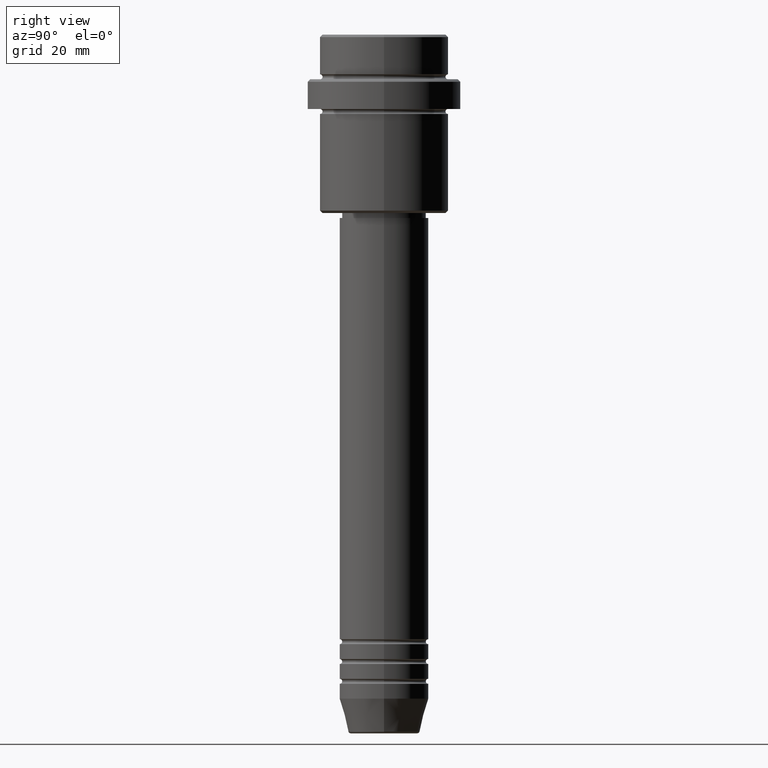
[diagram: clean part render]
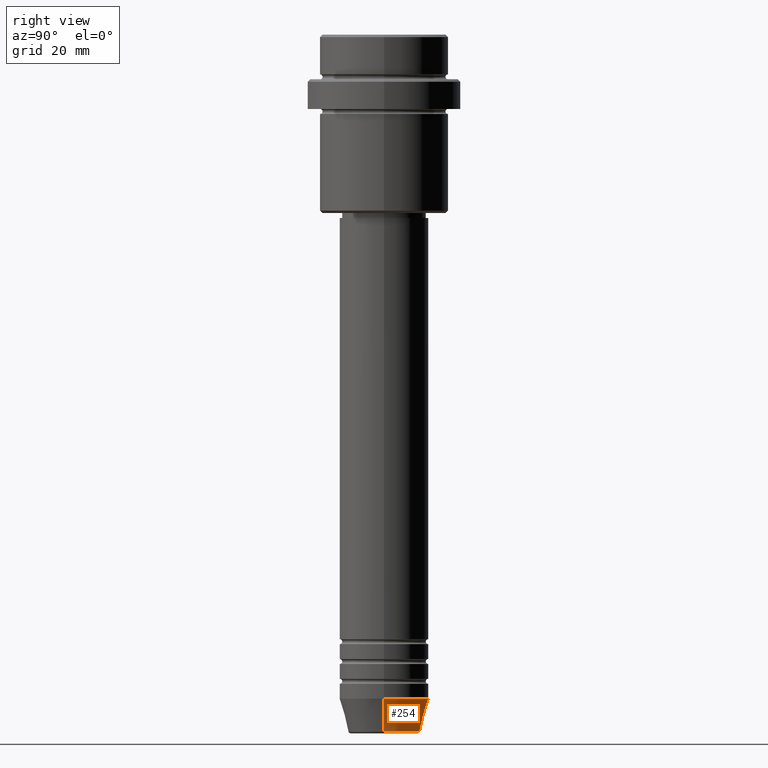
[diagram: same view with one face highlighted and labeled with its STEP entity id]
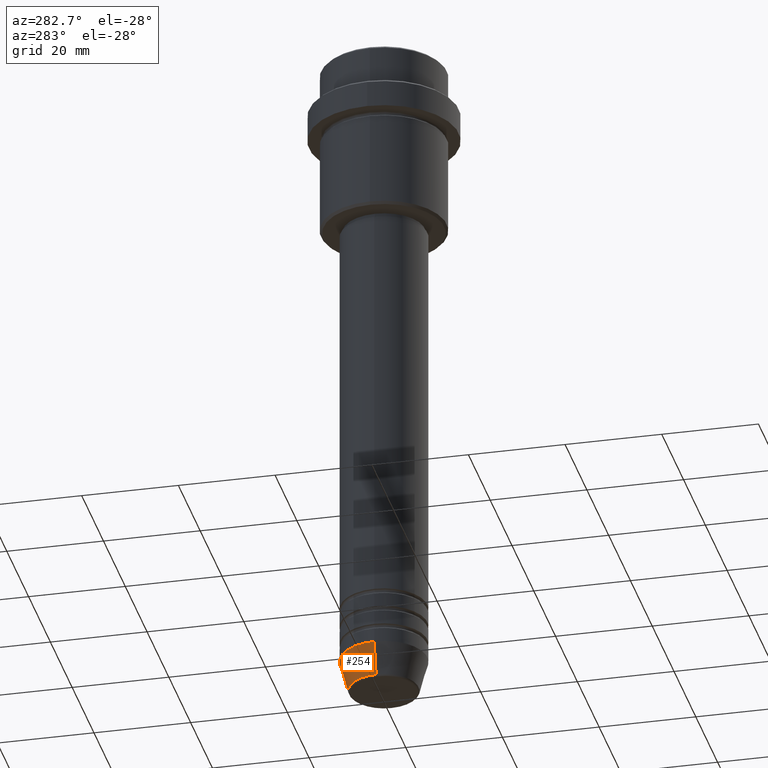
[diagram: same view with one face highlighted and labeled with its STEP entity id]
A machine part, right view. The second image highlights one B-rep face of the part: STEP entity #254.
A second angle (auxiliary view) of the same face is appended — the face is thin or edge-on in the first view.
In plain terms, the highlighted conical surface has half-angle 15 deg.
Its self-contained STEP definition (entity closure, byte-faithful):
#16 = LINE ( 'NONE', #603, #1122 ) ;
#42 = CARTESIAN_POINT ( 'NONE',  ( 0.000000000000000000, 0.000000000000000000, -133.9999999999999716 ) ) ;
#70 = VERTEX_POINT ( 'NONE', #225 ) ;
#83 = CARTESIAN_POINT ( 'NONE',  ( 9.000000000000000000, 0.000000000000000000, -133.9999999999999716 ) ) ;
#138 = DIRECTION ( 'NONE',  ( -0.2588190451025213501, 3.169619151431772337E-17, 0.9659258262890680902 ) ) ;
#173 = EDGE_CURVE ( 'NONE', #70, #1290, #16, .T. ) ;
#225 = CARTESIAN_POINT ( 'NONE',  ( 7.223655072137188604, 0.000000000000000000, -140.6294095225512706 ) ) ;
#254 = ADVANCED_FACE ( 'NONE', ( #1035 ), #864, .T. ) ;
#263 = CARTESIAN_POINT ( 'NONE',  ( 0.000000000000000000, 0.000000000000000000, -133.9999999999999716 ) ) ;
#299 = DIRECTION ( 'NONE',  ( -0.000000000000000000, -0.000000000000000000, 1.000000000000000000 ) ) ;
#309 = ORIENTED_EDGE ( 'NONE', *, *, #809, .T. ) ;
#398 = CARTESIAN_POINT ( 'NONE',  ( -9.000000000000000000, 1.102182119232617714E-15, -133.9999999999999716 ) ) ;
#430 = AXIS2_PLACEMENT_3D ( 'NONE', #542, #520, #764 ) ;
#493 = LINE ( 'NONE', #398, #1054 ) ;
#520 = DIRECTION ( 'NONE',  ( -0.000000000000000000, -0.000000000000000000, 1.000000000000000000 ) ) ;
#542 = CARTESIAN_POINT ( 'NONE',  ( 0.000000000000000000, 0.000000000000000000, -140.6294095225512706 ) ) ;
#554 = VERTEX_POINT ( 'NONE', #1215 ) ;
#578 = VERTEX_POINT ( 'NONE', #1319 ) ;
#603 = CARTESIAN_POINT ( 'NONE',  ( 9.000000000000000000, 0.000000000000000000, -133.9999999999999716 ) ) ;
#605 = ORIENTED_EDGE ( 'NONE', *, *, #739, .T. ) ;
#736 = CIRCLE ( 'NONE', #430, 7.223655072137188604 ) ;
#739 = EDGE_CURVE ( 'NONE', #554, #578, #493, .T. ) ;
#764 = DIRECTION ( 'NONE',  ( 1.000000000000000000, 0.000000000000000000, 0.000000000000000000 ) ) ;
#809 = EDGE_CURVE ( 'NONE', #70, #554, #736, .T. ) ;
#864 = CONICAL_SURFACE ( 'NONE', #1398, 9.000000000000000000, 0.2617993877991500740 ) ;
#886 = ORIENTED_EDGE ( 'NONE', *, *, #173, .F. ) ;
#891 = CIRCLE ( 'NONE', #912, 9.000000000000000000 ) ;
#912 = AXIS2_PLACEMENT_3D ( 'NONE', #263, #1114, #932 ) ;
#932 = DIRECTION ( 'NONE',  ( 1.000000000000000000, 0.000000000000000000, 0.000000000000000000 ) ) ;
#1023 = DIRECTION ( 'NONE',  ( 0.2588190451025213501, 0.000000000000000000, 0.9659258262890680902 ) ) ;
#1028 = DIRECTION ( 'NONE',  ( 1.000000000000000000, 0.000000000000000000, 0.000000000000000000 ) ) ;
#1035 = FACE_OUTER_BOUND ( 'NONE', #1253, .T. ) ;
#1054 = VECTOR ( 'NONE', #138, 1000.000000000000000 ) ;
#1114 = DIRECTION ( 'NONE',  ( -0.000000000000000000, -0.000000000000000000, 1.000000000000000000 ) ) ;
#1122 = VECTOR ( 'NONE', #1023, 1000.000000000000000 ) ;
#1144 = EDGE_CURVE ( 'NONE', #1290, #578, #891, .T. ) ;
#1215 = CARTESIAN_POINT ( 'NONE',  ( -7.223655072137189492, 9.934123627281765110E-16, -140.6294095225512706 ) ) ;
#1253 = EDGE_LOOP ( 'NONE', ( #309, #605, #1391, #886 ) ) ;
#1290 = VERTEX_POINT ( 'NONE', #83 ) ;
#1319 = CARTESIAN_POINT ( 'NONE',  ( -9.000000000000000000, 1.102182119232617714E-15, -133.9999999999999716 ) ) ;
#1391 = ORIENTED_EDGE ( 'NONE', *, *, #1144, .F. ) ;
#1398 = AXIS2_PLACEMENT_3D ( 'NONE', #42, #299, #1028 ) ;